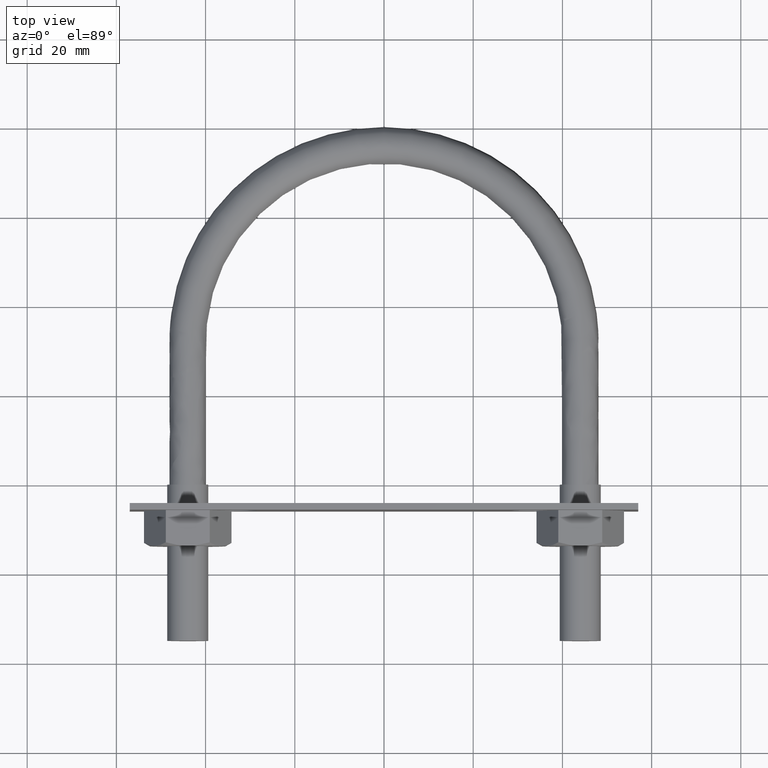
[diagram: clean part render]
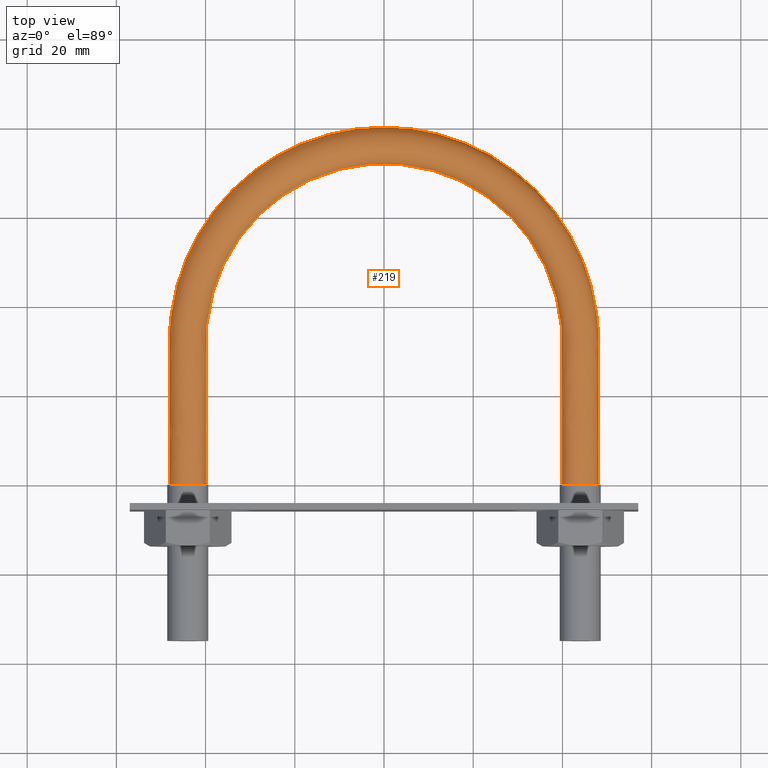
[diagram: same view with one face highlighted and labeled with its STEP entity id]
A machine part, top view. The second image highlights one B-rep face of the part: STEP entity #219.
In plain terms, the highlighted face is a freeform B-spline surface patch.
Its self-contained STEP definition (entity closure, byte-faithful):
#219 = ADVANCED_FACE( '', ( #291, #292 ), #293, .F. );
#291 = FACE_OUTER_BOUND( '', #452, .T. );
#292 = FACE_OUTER_BOUND( '', #453, .T. );
#293 = B_SPLINE_SURFACE_WITH_KNOTS( '', 3, 3, ( ( #454, #455, #456, #457, #458, #459, #460, #461, #462, #463, #464, #465, #466, #467, #468 ), ( #469, #470, #471, #472, #473, #474, #475, #476, #477, #478, #479, #480, #481, #482, #483 ), ( #484, #485, #486, #487, #488, #489, #490, #491, #492, #493, #494, #495, #496, #497, #498 ), ( #499, #500, #501, #502, #503, #504, #505, #506, #507, #508, #509, #510, #511, #512, #513 ), ( #514, #515, #516, #517, #518, #519, #520, #521, #522, #523, #524, #525, #526, #527, #528 ), ( #529, #530, #531, #532, #533, #534, #535, #536, #537, #538, #539, #540, #541, #542, #543 ), ( #544, #545, #546, #547, #548, #549, #550, #551, #552, #553, #554, #555, #556, #557, #558 ), ( #559, #560, #561, #562, #563, #564, #565, #566, #567, #568, #569, #570, #571, #572, #573 ), ( #574, #575, #576, #577, #578, #579, #580, #581, #582, #583, #584, #585, #586, #587, #588 ), ( #589, #590, #591, #592, #593, #594, #595, #596, #597, #598, #599, #600, #601, #602, #603 ) ), .UNSPECIFIED., .T., .F., .F., ( 2, 1, 1, 1, 1, 1, 1, 1, 1, 1, 1, 2 ), ( 4, 3, 1, 1, 1, 1, 1, 3, 4 ), ( -0.285714285714286, -0.142857142857143, 0.000000000000000, 0.142857142857143, 0.285714285714286, 0.428571428571429, 0.571428571428571, 0.714285714285714, 0.857142857142857, 1.00000000000000, 1.14285714285714, 1.28571428571429 ), ( 0.000000000000000, 1.00000000000000, 2.00000000000000, 3.00000000000000, 4.00000000000000, 5.00000000000000, 6.00000000000000, 7.00000000000000, 8.00000000000000 ), .UNSPECIFIED. );
#452 = EDGE_LOOP( '', ( #762 ) );
#453 = EDGE_LOOP( '', ( #763 ) );
#454 = CARTESIAN_POINT( '', ( -41.0768231851220, -1.48821921498990E-015, -3.66554778583225 ) );
#455 = CARTESIAN_POINT( '', ( -41.0768231851220, 10.7000000000000, -3.66554778583225 ) );
#456 = CARTESIAN_POINT( '', ( -41.0768231851220, 21.4000000000000, -3.66554778583225 ) );
#457 = CARTESIAN_POINT( '', ( -41.0768231851220, 32.1000000000000, -3.66554778583225 ) );
#458 = CARTESIAN_POINT( '', ( -41.0768231851220, 39.2539604836418, -3.66554778583225 ) );
#459 = CARTESIAN_POINT( '', ( -37.2364868135197, 53.6041912330561, -3.66554778583225 ) );
#460 = CARTESIAN_POINT( '', ( -21.4984956854615, 69.3348595142070, -3.66554778583225 ) );
#461 = CARTESIAN_POINT( '', ( -1.04083408558608E-014, 75.0978050205794, -3.66554778583225 ) );
#462 = CARTESIAN_POINT( '', ( 21.4984956854615, 69.3348595142070, -3.66554778583225 ) );
#463 = CARTESIAN_POINT( '', ( 37.2364868135197, 53.6041912330561, -3.66554778583225 ) );
#464 = CARTESIAN_POINT( '', ( 41.0768231851220, 39.2539604836418, -3.66554778583225 ) );
#465 = CARTESIAN_POINT( '', ( 41.0768231851220, 32.1000000000000, -3.66554778583225 ) );
#466 = CARTESIAN_POINT( '', ( 41.0768231851220, 21.4000000000000, -3.66554778583225 ) );
#467 = CARTESIAN_POINT( '', ( 41.0768231851220, 10.7000000000000, -3.66554778583225 ) );
#468 = CARTESIAN_POINT( '', ( 41.0768231851220, -1.03933390411293E-015, -3.66554778583225 ) );
#469 = CARTESIAN_POINT( '', ( -39.3115884074390, -2.02694022545978E-015, 0.000000000000000 ) );
#470 = CARTESIAN_POINT( '', ( -39.3115884074390, 10.7000000000000, 0.000000000000000 ) );
#471 = CARTESIAN_POINT( '', ( -39.3115884074390, 21.4000000000000, 0.000000000000000 ) );
#472 = CARTESIAN_POINT( '', ( -39.3115884074390, 32.1000000000000, 0.000000000000000 ) );
#473 = CARTESIAN_POINT( '', ( -39.3115884074390, 38.9386316615542, 0.000000000000000 ) );
#474 = CARTESIAN_POINT( '', ( -35.6362865929300, 52.6837546064310, 0.000000000000000 ) );
#475 = CARTESIAN_POINT( '', ( -20.5746196573467, 67.7336766074773, 0.000000000000000 ) );
#476 = CARTESIAN_POINT( '', ( -7.80625564189563E-015, 73.2505443074198, 0.000000000000000 ) );
#477 = CARTESIAN_POINT( '', ( 20.5746196573468, 67.7336766074773, 0.000000000000000 ) );
#478 = CARTESIAN_POINT( '', ( 35.6362865929299, 52.6837546064310, 0.000000000000000 ) );
#479 = CARTESIAN_POINT( '', ( 39.3115884074390, 38.9386316615542, 0.000000000000000 ) );
#480 = CARTESIAN_POINT( '', ( 39.3115884074390, 32.1000000000000, 0.000000000000000 ) );
#481 = CARTESIAN_POINT( '', ( 39.3115884074390, 21.4000000000000, 0.000000000000000 ) );
#482 = CARTESIAN_POINT( '', ( 39.3115884074390, 10.7000000000000, 0.000000000000000 ) );
#483 = CARTESIAN_POINT( '', ( 39.3115884074390, -2.02694022545978E-015, 0.000000000000000 ) );
#484 = CARTESIAN_POINT( '', ( -41.0768231851220, -1.03933390411293E-015, 3.66554778583225 ) );
#485 = CARTESIAN_POINT( '', ( -41.0768231851220, 10.7000000000000, 3.66554778583225 ) );
#486 = CARTESIAN_POINT( '', ( -41.0768231851219, 21.4000000000000, 3.66554778583225 ) );
#487 = CARTESIAN_POINT( '', ( -41.0768231851219, 32.1000000000000, 3.66554778583225 ) );
#488 = CARTESIAN_POINT( '', ( -41.0768231851219, 39.2539604836418, 3.66554778583225 ) );
#489 = CARTESIAN_POINT( '', ( -37.2364868135197, 53.6041912330561, 3.66554778583225 ) );
#490 = CARTESIAN_POINT( '', ( -21.4984956854615, 69.3348595142070, 3.66554778583225 ) );
#491 = CARTESIAN_POINT( '', ( -1.04083408558608E-014, 75.0978050205794, 3.66554778583225 ) );
#492 = CARTESIAN_POINT( '', ( 21.4984956854615, 69.3348595142070, 3.66554778583225 ) );
#493 = CARTESIAN_POINT( '', ( 37.2364868135197, 53.6041912330561, 3.66554778583225 ) );
#494 = CARTESIAN_POINT( '', ( 41.0768231851219, 39.2539604836418, 3.66554778583225 ) );
#495 = CARTESIAN_POINT( '', ( 41.0768231851219, 32.1000000000000, 3.66554778583225 ) );
#496 = CARTESIAN_POINT( '', ( 41.0768231851219, 21.4000000000000, 3.66554778583225 ) );
#497 = CARTESIAN_POINT( '', ( 41.0768231851219, 10.7000000000000, 3.66554778583225 ) );
#498 = CARTESIAN_POINT( '', ( 41.0768231851219, -1.48821921498990E-015, 3.66554778583225 ) );
#499 = CARTESIAN_POINT( '', ( -45.0432697263483, 7.30912045578903E-016, 4.57086332538454 ) );
#500 = CARTESIAN_POINT( '', ( -45.0432697263483, 10.7000000000000, 4.57086332538454 ) );
#501 = CARTESIAN_POINT( '', ( -45.0432697263483, 21.4000000000000, 4.57086332538454 ) );
#502 = CARTESIAN_POINT( '', ( -45.0432697263483, 32.1000000000000, 4.57086332538454 ) );
#503 = CARTESIAN_POINT( '', ( -45.0432697263483, 39.9624979153370, 4.57086332538454 ) );
#504 = CARTESIAN_POINT( '', ( -40.8321040710490, 55.6723935595971, 4.57086332538453 ) );
#505 = CARTESIAN_POINT( '', ( -23.5744262769989, 72.9326848474495, 4.57086332538454 ) );
#506 = CARTESIAN_POINT( '', ( -8.67361737988404E-015, 79.2485621657976, 4.57086332538453 ) );
#507 = CARTESIAN_POINT( '', ( 23.5744262769990, 72.9326848474495, 4.57086332538453 ) );
#508 = CARTESIAN_POINT( '', ( 40.8321040710490, 55.6723935595971, 4.57086332538454 ) );
#509 = CARTESIAN_POINT( '', ( 45.0432697263483, 39.9624979153370, 4.57086332538454 ) );
#510 = CARTESIAN_POINT( '', ( 45.0432697263483, 32.1000000000000, 4.57086332538454 ) );
#511 = CARTESIAN_POINT( '', ( 45.0432697263483, 21.4000000000000, 4.57086332538454 ) );
#512 = CARTESIAN_POINT( '', ( 45.0432697263483, 10.7000000000000, 4.57086332538454 ) );
#513 = CARTESIAN_POINT( '', ( 45.0432697263483, 1.71161218506947E-016, 4.57086332538454 ) );
#514 = CARTESIAN_POINT( '', ( -48.2241128848102, 1.95076631706123E-015, 2.03422555230246 ) );
#515 = CARTESIAN_POINT( '', ( -48.2241128848102, 10.7000000000000, 2.03422555230246 ) );
#516 = CARTESIAN_POINT( '', ( -48.2241128848102, 21.4000000000000, 2.03422555230246 ) );
#517 = CARTESIAN_POINT( '', ( -48.2241128848102, 32.1000000000000, 2.03422555230246 ) );
#518 = CARTESIAN_POINT( '', ( -48.2241128848102, 40.5307008190436, 2.03422555230246 ) );
#519 = CARTESIAN_POINT( '', ( -43.7155652333729, 57.3309630505297, 2.03422555230246 ) );
#520 = CARTESIAN_POINT( '', ( -25.2391933552644, 75.8179167490114, 2.03422555230247 ) );
#521 = CARTESIAN_POINT( '', ( -6.93889390390723E-015, 82.5772109527096, 2.03422555230246 ) );
#522 = CARTESIAN_POINT( '', ( 25.2391933552645, 75.8179167490114, 2.03422555230246 ) );
#523 = CARTESIAN_POINT( '', ( 43.7155652333728, 57.3309630505297, 2.03422555230246 ) );
#524 = CARTESIAN_POINT( '', ( 48.2241128848102, 40.5307008190436, 2.03422555230246 ) );
#525 = CARTESIAN_POINT( '', ( 48.2241128848102, 32.1000000000000, 2.03422555230246 ) );
#526 = CARTESIAN_POINT( '', ( 48.2241128848102, 21.4000000000000, 2.03422555230246 ) );
#527 = CARTESIAN_POINT( '', ( 48.2241128848102, 10.7000000000000, 2.03422555230246 ) );
#528 = CARTESIAN_POINT( '', ( 48.2241128848102, 1.70165376341549E-015, 2.03422555230246 ) );
#529 = CARTESIAN_POINT( '', ( -48.2241128848102, 1.70165376341549E-015, -2.03422555230246 ) );
#530 = CARTESIAN_POINT( '', ( -48.2241128848102, 10.7000000000000, -2.03422555230246 ) );
#531 = CARTESIAN_POINT( '', ( -48.2241128848102, 21.4000000000000, -2.03422555230246 ) );
#532 = CARTESIAN_POINT( '', ( -48.2241128848102, 32.1000000000000, -2.03422555230246 ) );
#533 = CARTESIAN_POINT( '', ( -48.2241128848102, 40.5307008190436, -2.03422555230246 ) );
#534 = CARTESIAN_POINT( '', ( -43.7155652333729, 57.3309630505297, -2.03422555230246 ) );
#535 = CARTESIAN_POINT( '', ( -25.2391933552645, 75.8179167490114, -2.03422555230246 ) );
#536 = CARTESIAN_POINT( '', ( -6.07153216591882E-015, 82.5772109527096, -2.03422555230246 ) );
#537 = CARTESIAN_POINT( '', ( 25.2391933552645, 75.8179167490114, -2.03422555230246 ) );
#538 = CARTESIAN_POINT( '', ( 43.7155652333729, 57.3309630505297, -2.03422555230246 ) );
#539 = CARTESIAN_POINT( '', ( 48.2241128848102, 40.5307008190436, -2.03422555230246 ) );
#540 = CARTESIAN_POINT( '', ( 48.2241128848102, 32.1000000000000, -2.03422555230246 ) );
#541 = CARTESIAN_POINT( '', ( 48.2241128848102, 21.4000000000000, -2.03422555230246 ) );
#542 = CARTESIAN_POINT( '', ( 48.2241128848102, 10.7000000000000, -2.03422555230246 ) );
#543 = CARTESIAN_POINT( '', ( 48.2241128848102, 1.95076631706123E-015, -2.03422555230246 ) );
#544 = CARTESIAN_POINT( '', ( -45.0432697263483, 1.71161218506945E-016, -4.57086332538454 ) );
#545 = CARTESIAN_POINT( '', ( -45.0432697263483, 10.7000000000000, -4.57086332538454 ) );
#546 = CARTESIAN_POINT( '', ( -45.0432697263483, 21.4000000000000, -4.57086332538454 ) );
#547 = CARTESIAN_POINT( '', ( -45.0432697263483, 32.1000000000000, -4.57086332538454 ) );
#548 = CARTESIAN_POINT( '', ( -45.0432697263483, 39.9624979153370, -4.57086332538454 ) );
#549 = CARTESIAN_POINT( '', ( -40.8321040710490, 55.6723935595971, -4.57086332538453 ) );
#550 = CARTESIAN_POINT( '', ( -23.5744262769989, 72.9326848474496, -4.57086332538454 ) );
#551 = CARTESIAN_POINT( '', ( -6.93889390390723E-015, 79.2485621657976, -4.57086332538453 ) );
#552 = CARTESIAN_POINT( '', ( 23.5744262769989, 72.9326848474495, -4.57086332538454 ) );
#553 = CARTESIAN_POINT( '', ( 40.8321040710490, 55.6723935595971, -4.57086332538454 ) );
#554 = CARTESIAN_POINT( '', ( 45.0432697263483, 39.9624979153370, -4.57086332538454 ) );
#555 = CARTESIAN_POINT( '', ( 45.0432697263483, 32.1000000000000, -4.57086332538454 ) );
#556 = CARTESIAN_POINT( '', ( 45.0432697263483, 21.4000000000000, -4.57086332538454 ) );
#557 = CARTESIAN_POINT( '', ( 45.0432697263483, 10.7000000000000, -4.57086332538454 ) );
#558 = CARTESIAN_POINT( '', ( 45.0432697263483, 7.30912045578902E-016, -4.57086332538454 ) );
#559 = CARTESIAN_POINT( '', ( -41.0768231851220, -1.48821921498990E-015, -3.66554778583225 ) );
#560 = CARTESIAN_POINT( '', ( -41.0768231851220, 10.7000000000000, -3.66554778583225 ) );
#561 = CARTESIAN_POINT( '', ( -41.0768231851220, 21.4000000000000, -3.66554778583225 ) );
#562 = CARTESIAN_POINT( '', ( -41.0768231851220, 32.1000000000000, -3.66554778583225 ) );
#563 = CARTESIAN_POINT( '', ( -41.0768231851220, 39.2539604836418, -3.66554778583225 ) );
#564 = CARTESIAN_POINT( '', ( -37.2364868135197, 53.6041912330561, -3.66554778583225 ) );
#565 = CARTESIAN_POINT( '', ( -21.4984956854615, 69.3348595142070, -3.66554778583225 ) );
#566 = CARTESIAN_POINT( '', ( -1.04083408558608E-014, 75.0978050205794, -3.66554778583225 ) );
#567 = CARTESIAN_POINT( '', ( 21.4984956854615, 69.3348595142070, -3.66554778583225 ) );
#568 = CARTESIAN_POINT( '', ( 37.2364868135197, 53.6041912330561, -3.66554778583225 ) );
#569 = CARTESIAN_POINT( '', ( 41.0768231851220, 39.2539604836418, -3.66554778583225 ) );
#570 = CARTESIAN_POINT( '', ( 41.0768231851220, 32.1000000000000, -3.66554778583225 ) );
#571 = CARTESIAN_POINT( '', ( 41.0768231851220, 21.4000000000000, -3.66554778583225 ) );
#572 = CARTESIAN_POINT( '', ( 41.0768231851220, 10.7000000000000, -3.66554778583225 ) );
#573 = CARTESIAN_POINT( '', ( 41.0768231851220, -1.03933390411293E-015, -3.66554778583225 ) );
#574 = CARTESIAN_POINT( '', ( -39.3115884074390, -2.02694022545978E-015, 0.000000000000000 ) );
#575 = CARTESIAN_POINT( '', ( -39.3115884074390, 10.7000000000000, 0.000000000000000 ) );
#576 = CARTESIAN_POINT( '', ( -39.3115884074390, 21.4000000000000, 0.000000000000000 ) );
#577 = CARTESIAN_POINT( '', ( -39.3115884074390, 32.1000000000000, 0.000000000000000 ) );
#578 = CARTESIAN_POINT( '', ( -39.3115884074390, 38.9386316615542, 0.000000000000000 ) );
#579 = CARTESIAN_POINT( '', ( -35.6362865929300, 52.6837546064310, 0.000000000000000 ) );
#580 = CARTESIAN_POINT( '', ( -20.5746196573467, 67.7336766074773, 0.000000000000000 ) );
#581 = CARTESIAN_POINT( '', ( -7.80625564189563E-015, 73.2505443074198, 0.000000000000000 ) );
#582 = CARTESIAN_POINT( '', ( 20.5746196573468, 67.7336766074773, 0.000000000000000 ) );
#583 = CARTESIAN_POINT( '', ( 35.6362865929299, 52.6837546064310, 0.000000000000000 ) );
#584 = CARTESIAN_POINT( '', ( 39.3115884074390, 38.9386316615542, 0.000000000000000 ) );
#585 = CARTESIAN_POINT( '', ( 39.3115884074390, 32.1000000000000, 0.000000000000000 ) );
#586 = CARTESIAN_POINT( '', ( 39.3115884074390, 21.4000000000000, 0.000000000000000 ) );
#587 = CARTESIAN_POINT( '', ( 39.3115884074390, 10.7000000000000, 0.000000000000000 ) );
#588 = CARTESIAN_POINT( '', ( 39.3115884074390, -2.02694022545978E-015, 0.000000000000000 ) );
#589 = CARTESIAN_POINT( '', ( -41.0768231851220, -1.03933390411293E-015, 3.66554778583225 ) );
#590 = CARTESIAN_POINT( '', ( -41.0768231851220, 10.7000000000000, 3.66554778583225 ) );
#591 = CARTESIAN_POINT( '', ( -41.0768231851219, 21.4000000000000, 3.66554778583225 ) );
#592 = CARTESIAN_POINT( '', ( -41.0768231851219, 32.1000000000000, 3.66554778583225 ) );
#593 = CARTESIAN_POINT( '', ( -41.0768231851219, 39.2539604836418, 3.66554778583225 ) );
#594 = CARTESIAN_POINT( '', ( -37.2364868135197, 53.6041912330561, 3.66554778583225 ) );
#595 = CARTESIAN_POINT( '', ( -21.4984956854615, 69.3348595142070, 3.66554778583225 ) );
#596 = CARTESIAN_POINT( '', ( -1.04083408558608E-014, 75.0978050205794, 3.66554778583225 ) );
#597 = CARTESIAN_POINT( '', ( 21.4984956854615, 69.3348595142070, 3.66554778583225 ) );
#598 = CARTESIAN_POINT( '', ( 37.2364868135197, 53.6041912330561, 3.66554778583225 ) );
#599 = CARTESIAN_POINT( '', ( 41.0768231851219, 39.2539604836418, 3.66554778583225 ) );
#600 = CARTESIAN_POINT( '', ( 41.0768231851219, 32.1000000000000, 3.66554778583225 ) );
#601 = CARTESIAN_POINT( '', ( 41.0768231851219, 21.4000000000000, 3.66554778583225 ) );
#602 = CARTESIAN_POINT( '', ( 41.0768231851219, 10.7000000000000, 3.66554778583225 ) );
#603 = CARTESIAN_POINT( '', ( 41.0768231851219, -1.48821921498990E-015, 3.66554778583225 ) );
#762 = ORIENTED_EDGE( '', *, *, #1288, .T. );
#763 = ORIENTED_EDGE( '', *, *, #1289, .T. );
#1288 = EDGE_CURVE( '', #1446, #1446, #1447, .F. );
#1289 = EDGE_CURVE( '', #1448, #1448, #1449, .T. );
#1446 = VERTEX_POINT( '', #1710 );
#1447 = B_SPLINE_CURVE_WITH_KNOTS( '', 3, ( #1711, #1712, #1713, #1714, #1715, #1716, #1717, #1718, #1719, #1720 ), .UNSPECIFIED., .T., .F., ( 4, 1, 1, 1, 1, 1, 1, 4 ), ( 0.000000000000000, 0.142857142857143, 0.285714285714286, 0.428571428571429, 0.571428571428571, 0.714285714285714, 0.857142857142857, 1.00000000000000 ), .UNSPECIFIED. );
#1448 = VERTEX_POINT( '', #1721 );
#1449 = B_SPLINE_CURVE_WITH_KNOTS( '', 3, ( #1722, #1723, #1724, #1725, #1726, #1727, #1728, #1729, #1730, #1731 ), .UNSPECIFIED., .T., .F., ( 4, 1, 1, 1, 1, 1, 1, 4 ), ( 0.000000000000000, 0.142857142857143, 0.285714285714286, 0.428571428571429, 0.571428571428571, 0.714285714285714, 0.857142857142857, 1.00000000000000 ), .UNSPECIFIED. );
#1710 = CARTESIAN_POINT( '', ( -39.9000000000000, -1.77255233682366E-015, 1.19262238973405E-015 ) );
#1711 = CARTESIAN_POINT( '', ( -39.9000000000000, -1.77255233682366E-015, 4.33680868994202E-016 ) );
#1712 = CARTESIAN_POINT( '', ( -39.9000000000000, -1.69773811834416E-015, 1.22184926194408 ) );
#1713 = CARTESIAN_POINT( '', ( -41.0768231851220, -1.03933390411293E-015, 3.66554778583225 ) );
#1714 = CARTESIAN_POINT( '', ( -45.0432697263483, 7.30912045578903E-016, 4.57086332538454 ) );
#1715 = CARTESIAN_POINT( '', ( -48.2241128848102, 1.95076631706123E-015, 2.03422555230246 ) );
#1716 = CARTESIAN_POINT( '', ( -48.2241128848102, 1.70165376341549E-015, -2.03422555230246 ) );
#1717 = CARTESIAN_POINT( '', ( -45.0432697263483, 1.71161218506945E-016, -4.57086332538454 ) );
#1718 = CARTESIAN_POINT( '', ( -41.0768231851220, -1.48821921498990E-015, -3.66554778583225 ) );
#1719 = CARTESIAN_POINT( '', ( -39.9000000000000, -1.84736655530315E-015, -1.22184926194408 ) );
#1720 = CARTESIAN_POINT( '', ( -39.9000000000000, -1.77255233682366E-015, 4.33680868994202E-016 ) );
#1721 = CARTESIAN_POINT( '', ( 39.9000000000000, -1.77255233682366E-015, 4.33680868994202E-016 ) );
#1722 = CARTESIAN_POINT( '', ( 39.9000000000000, -1.77255233682366E-015, 4.33680868994202E-016 ) );
#1723 = CARTESIAN_POINT( '', ( 39.9000000000000, -1.84736655530315E-015, 1.22184926194408 ) );
#1724 = CARTESIAN_POINT( '', ( 41.0768231851219, -1.48821921498990E-015, 3.66554778583225 ) );
#1725 = CARTESIAN_POINT( '', ( 45.0432697263483, 1.71161218506947E-016, 4.57086332538454 ) );
#1726 = CARTESIAN_POINT( '', ( 48.2241128848102, 1.70165376341549E-015, 2.03422555230246 ) );
#1727 = CARTESIAN_POINT( '', ( 48.2241128848102, 1.95076631706123E-015, -2.03422555230246 ) );
#1728 = CARTESIAN_POINT( '', ( 45.0432697263483, 7.30912045578902E-016, -4.57086332538454 ) );
#1729 = CARTESIAN_POINT( '', ( 41.0768231851220, -1.03933390411293E-015, -3.66554778583225 ) );
#1730 = CARTESIAN_POINT( '', ( 39.9000000000000, -1.69773811834416E-015, -1.22184926194408 ) );
#1731 = CARTESIAN_POINT( '', ( 39.9000000000000, -1.77255233682366E-015, 4.33680868994202E-016 ) );